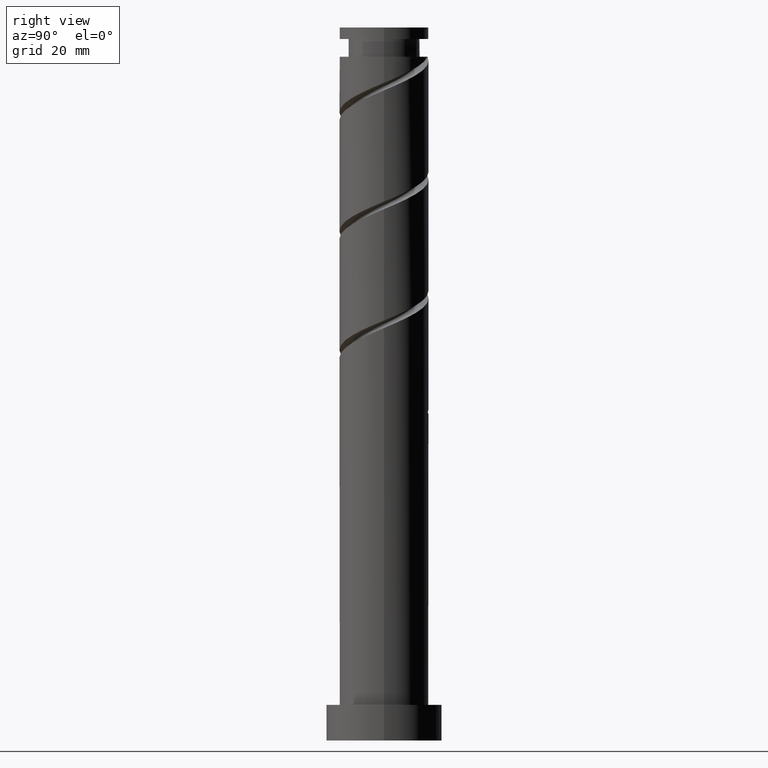
[diagram: clean part render]
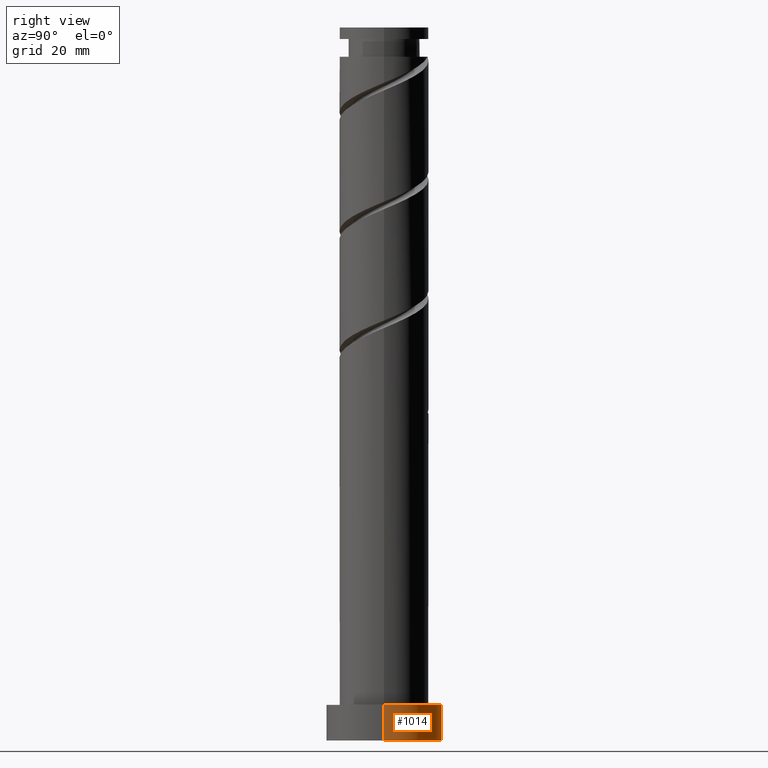
[diagram: same view with one face highlighted and labeled with its STEP entity id]
A machine part, right view. The second image highlights one B-rep face of the part: STEP entity #1014.
In plain terms, the highlighted cylindrical surface (partial cylindrical patch) has radius 13 mm, axis along (-0, -0, -1).
Its self-contained STEP definition (entity closure, byte-faithful):
#139 = CARTESIAN_POINT ( 'NONE',  ( 0.000000000000000000, 0.000000000000000000, 8.000000000000000000 ) ) ;
#195 = CARTESIAN_POINT ( 'NONE',  ( 13.00000000000000178, 1.592040838891559293E-15, 0.000000000000000000 ) ) ;
#206 = CARTESIAN_POINT ( 'NONE',  ( -13.00000000000000178, 0.000000000000000000, 8.000000000000000000 ) ) ;
#229 = EDGE_CURVE ( 'NONE', #1438, #1391, #906, .T. ) ;
#380 = DIRECTION ( 'NONE',  ( 1.000000000000000000, 0.000000000000000000, 0.000000000000000000 ) ) ;
#381 = ORIENTED_EDGE ( 'NONE', *, *, #1070, .T. ) ;
#399 = EDGE_CURVE ( 'NONE', #1438, #658, #1091, .T. ) ;
#463 = CARTESIAN_POINT ( 'NONE',  ( 13.00000000000000178, 1.592040838891559293E-15, 8.000000000000000000 ) ) ;
#478 = DIRECTION ( 'NONE',  ( -0.000000000000000000, -0.000000000000000000, -1.000000000000000000 ) ) ;
#519 = DIRECTION ( 'NONE',  ( 0.000000000000000000, 0.000000000000000000, 1.000000000000000000 ) ) ;
#561 = VECTOR ( 'NONE', #732, 1000.000000000000000 ) ;
#656 = VERTEX_POINT ( 'NONE', #1249 ) ;
#658 = VERTEX_POINT ( 'NONE', #1144 ) ;
#732 = DIRECTION ( 'NONE',  ( -0.000000000000000000, -0.000000000000000000, -1.000000000000000000 ) ) ;
#733 = VECTOR ( 'NONE', #478, 1000.000000000000000 ) ;
#794 = FACE_OUTER_BOUND ( 'NONE', #1563, .T. ) ;
#842 = AXIS2_PLACEMENT_3D ( 'NONE', #1381, #973, #1360 ) ;
#896 = CARTESIAN_POINT ( 'NONE',  ( 13.00000000000000178, 1.592040838891559293E-15, 8.000000000000000000 ) ) ;
#906 = LINE ( 'NONE', #896, #733 ) ;
#931 = ORIENTED_EDGE ( 'NONE', *, *, #229, .T. ) ;
#973 = DIRECTION ( 'NONE',  ( 0.000000000000000000, 0.000000000000000000, 1.000000000000000000 ) ) ;
#978 = CIRCLE ( 'NONE', #1011, 13.00000000000000178 ) ;
#1011 = AXIS2_PLACEMENT_3D ( 'NONE', #1663, #519, #380 ) ;
#1014 = ADVANCED_FACE ( 'NONE', ( #794 ), #1301, .T. ) ;
#1070 = EDGE_CURVE ( 'NONE', #1391, #656, #978, .T. ) ;
#1091 = CIRCLE ( 'NONE', #842, 13.00000000000000178 ) ;
#1093 = AXIS2_PLACEMENT_3D ( 'NONE', #139, #1095, #1199 ) ;
#1095 = DIRECTION ( 'NONE',  ( -0.000000000000000000, -0.000000000000000000, -1.000000000000000000 ) ) ;
#1115 = LINE ( 'NONE', #206, #561 ) ;
#1144 = CARTESIAN_POINT ( 'NONE',  ( -13.00000000000000178, 0.000000000000000000, 8.000000000000000000 ) ) ;
#1199 = DIRECTION ( 'NONE',  ( -1.000000000000000000, 0.000000000000000000, 0.000000000000000000 ) ) ;
#1249 = CARTESIAN_POINT ( 'NONE',  ( -13.00000000000000178, 0.000000000000000000, 0.000000000000000000 ) ) ;
#1301 = CYLINDRICAL_SURFACE ( 'NONE', #1093, 13.00000000000000178 ) ;
#1360 = DIRECTION ( 'NONE',  ( 1.000000000000000000, 0.000000000000000000, 0.000000000000000000 ) ) ;
#1381 = CARTESIAN_POINT ( 'NONE',  ( 0.000000000000000000, 0.000000000000000000, 8.000000000000000000 ) ) ;
#1384 = ORIENTED_EDGE ( 'NONE', *, *, #1453, .F. ) ;
#1391 = VERTEX_POINT ( 'NONE', #195 ) ;
#1438 = VERTEX_POINT ( 'NONE', #463 ) ;
#1453 = EDGE_CURVE ( 'NONE', #658, #656, #1115, .T. ) ;
#1499 = ORIENTED_EDGE ( 'NONE', *, *, #399, .F. ) ;
#1563 = EDGE_LOOP ( 'NONE', ( #1499, #931, #381, #1384 ) ) ;
#1663 = CARTESIAN_POINT ( 'NONE',  ( 0.000000000000000000, 0.000000000000000000, 0.000000000000000000 ) ) ;